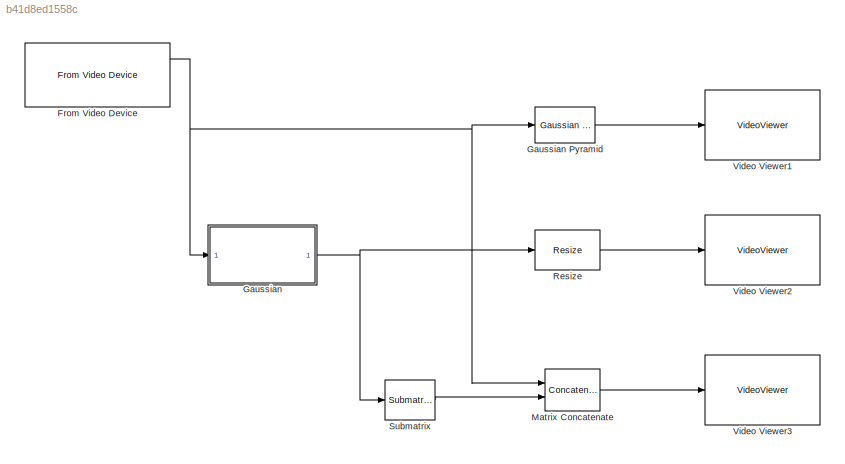
MODEL slx_b41d8ed1558c
KIND model
CONFIG AbsTol = auto
CONFIG EnableMultiTasking = off
CONFIG FixedStep = auto
CONFIG MaxStep = auto
CONFIG MinStep = auto
CONFIG RelTol = 1e-3
CONFIG SampleTimeConstraint = Unconstrained
CONFIG Solver = FixedStepDiscrete
CONFIG SolverName = FixedStepDiscrete
CONFIG StartTime = 0.0
CONFIG StopTime = 10.0
BLOCK [Reference] From Video Device  REF=imaqlib/From Video Device
  Ports = [0, 3]
  SourceBlock = imaqlib/From Video Device
  SourceProductBaseCode = IA
  SourceProductName = Image Acquisition Toolbox
  SourceType = From Video Device
  UserDataPersistent = on
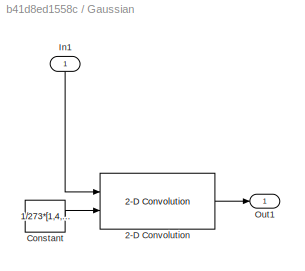
BLOCK [SubSystem] Gaussian 
  Ports = [1, 1]
  RequestExecContextInheritance = off
  Variant = off
BLOCK [Reference] Gaussian /2-D Convolution  REF=visionfilter/2-D Convolution
  Ports = [2, 1]
  SourceBlock = visionfilter/2-D Convolution
  SourceProductBaseCode = VP
  SourceProductName = Computer Vision System Toolbox
  SourceType = 2-D Convolution
BLOCK [Constant] Gaussian /Constant
  OutDataTypeStr = single
  Value = 1/273*[1,4,7,4,1;4,16,26,16,4;7,26,41,26,7;4,16,26,16,4;1,4,7,4,1]
BLOCK [Inport] Gaussian /In1
  IconDisplay = Port number
BLOCK [Outport] Gaussian /Out1
  IconDisplay = Port number
BLOCK [Reference] Gaussian Pyramid  REF=visiontransforms/Gaussian
Pyramid
  Ports = [1, 1]
  SourceBlock = visiontransforms/Gaussian\nPyramid
  SourceProductBaseCode = VP
  SourceProductName = Computer Vision System Toolbox
  SourceType = Gaussian Pyramid
BLOCK [Concatenate] Matrix Concatenate
  ConcatenateDimension = 2
  Mode = Multidimensional array
  Ports = [2, 1]
BLOCK [Reference] Resize  REF=visiongeotforms/Resize
  Ports = [1, 1]
  SourceBlock = visiongeotforms/Resize
  SourceProductBaseCode = VP
  SourceProductName = Computer Vision System Toolbox
  SourceType = Resize
BLOCK [Reference] Submatrix  REF=dspmtrx3/Submatrix
  Ports = [1, 1]
  SourceBlock = dspmtrx3/Submatrix
  SourceProductBaseCode = DS
  SourceProductName = DSP System Toolbox
  SourceType = Submatrix
BLOCK [VideoViewer] Video Viewer1
  FigPos = [1503 788 846 595]
  Ports = [1]
  ScopeSpecificationString = vipscopes.VideoViewerScopeCfg('CurrentConfiguration', extmgr.ConfigurationSet(extmgr.Configuration('Core','General UI',true),extmgr.Configuration('Core','Source UI',true),extmgr.Configuration('Sources','WiredSimulink',true),extmgr.Configuration('Visuals','Video',true),extmgr.Configuration('Tools','Image Navigation Tools',true,'FitToView',true),extmgr.Configuration('Tools','Image Tool',true),extmgr...<+119ch>
  colormapValue = gray(256)
BLOCK [VideoViewer] Video Viewer2
  FigPos = [2269 1000 846 595]
  Ports = [1]
  ScopeSpecificationString = vipscopes.VideoViewerScopeCfg('CurrentConfiguration', extmgr.ConfigurationSet(extmgr.Configuration('Core','General UI',true),extmgr.Configuration('Core','Source UI',true),extmgr.Configuration('Sources','WiredSimulink',true),extmgr.Configuration('Visuals','Video',true),extmgr.Configuration('Tools','Image Navigation Tools',true,'FitToView',true),extmgr.Configuration('Tools','Image Tool',true),extmgr...<+120ch>
  colormapValue = gray(256)
BLOCK [VideoViewer] Video Viewer3
  FigPos = [1657 1046 1181 764]
  Ports = [1]
  ScopeSpecificationString = vipscopes.VideoViewerScopeCfg('CurrentConfiguration', extmgr.ConfigurationSet(extmgr.Configuration('Core','General UI',true),extmgr.Configuration('Core','Source UI',true),extmgr.Configuration('Sources','WiredSimulink',true),extmgr.Configuration('Visuals','Video',true),extmgr.Configuration('Tools','Image Navigation Tools',true,'FitToView',true),extmgr.Configuration('Tools','Image Tool',true),extmgr...<+95ch>
  colormapValue = gray(256)
NET From Video Device:1 -> Gaussian :1, Gaussian Pyramid:1, Matrix Concatenate:1
LINE Gaussian /2-D Convolution:1 -> Gaussian /Out1:1
LINE Gaussian /Constant:1 -> Gaussian /2-D Convolution:2
LINE Gaussian /In1:1 -> Gaussian /2-D Convolution:1
NET Gaussian :1 -> Resize:1, Submatrix:1
LINE Gaussian Pyramid:1 -> Video Viewer1:1
LINE Matrix Concatenate:1 -> Video Viewer3:1
LINE Resize:1 -> Video Viewer2:1
LINE Submatrix:1 -> Matrix Concatenate:2
note: NET lines group one-source signal fan-out (src -> all destinations, sorted); 1:1 wires keep LINE
